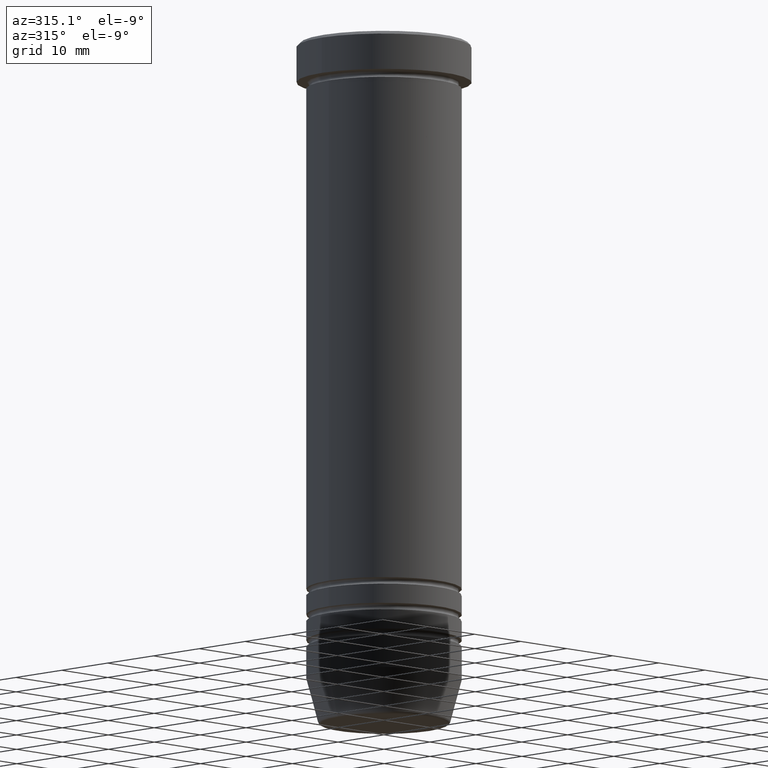
[diagram: clean part render]
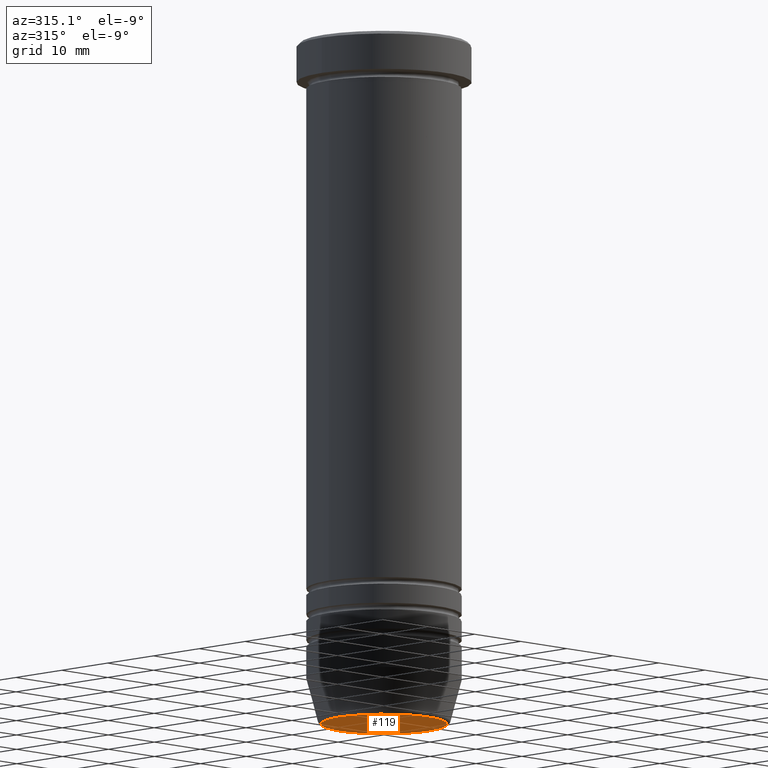
[diagram: same view with one face highlighted and labeled with its STEP entity id]
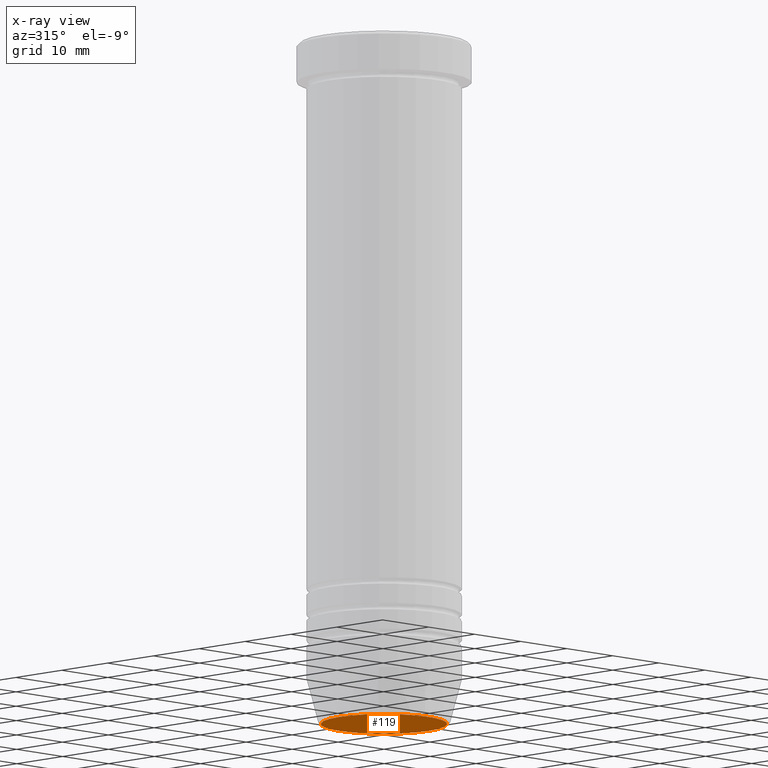
[diagram: x-ray of the same camera — body ghosted, the highlighted face saturated]
A machine part, auxiliary view. The second image highlights one B-rep face of the part: STEP entity #119.
The next image is the same camera in x-ray: the body ghosted, the highlighted face saturated — about 0% of this face is hidden behind the body in this view.
In plain terms, the highlighted planar face has unit normal (0, -0, 1).
Its self-contained STEP definition (entity closure, byte-faithful):
#4 = ORIENTED_EDGE ( 'NONE', *, *, #64, .T. ) ;
#64 = EDGE_CURVE ( 'NONE', #552, #385, #448, .T. ) ;
#119 = ADVANCED_FACE ( 'NONE', ( #348 ), #527, .F. ) ;
#246 = AXIS2_PLACEMENT_3D ( 'NONE', #396, #583, #748 ) ;
#259 = DIRECTION ( 'NONE',  ( 1.000000000000000000, 0.000000000000000000, 0.000000000000000000 ) ) ;
#348 = FACE_OUTER_BOUND ( 'NONE', #713, .T. ) ;
#385 = VERTEX_POINT ( 'NONE', #1012 ) ;
#396 = CARTESIAN_POINT ( 'NONE',  ( 0.000000000000000000, 0.000000000000000000, -106.0000000000000000 ) ) ;
#448 = CIRCLE ( 'NONE', #751, 9.740692158992654726 ) ;
#502 = DIRECTION ( 'NONE',  ( 0.000000000000000000, 0.000000000000000000, -1.000000000000000000 ) ) ;
#527 = PLANE ( 'NONE',  #753 ) ;
#552 = VERTEX_POINT ( 'NONE', #654 ) ;
#583 = DIRECTION ( 'NONE',  ( 0.000000000000000000, 0.000000000000000000, -1.000000000000000000 ) ) ;
#585 = EDGE_CURVE ( 'NONE', #385, #552, #1006, .T. ) ;
#593 = CARTESIAN_POINT ( 'NONE',  ( 0.000000000000000000, 0.000000000000000000, -106.0000000000000000 ) ) ;
#654 = CARTESIAN_POINT ( 'NONE',  ( 9.740692158992654726, 0.000000000000000000, -106.0000000000000000 ) ) ;
#677 = ORIENTED_EDGE ( 'NONE', *, *, #585, .T. ) ;
#704 = DIRECTION ( 'NONE',  ( 0.000000000000000000, -0.000000000000000000, 1.000000000000000000 ) ) ;
#713 = EDGE_LOOP ( 'NONE', ( #4, #677 ) ) ;
#748 = DIRECTION ( 'NONE',  ( 1.000000000000000000, 0.000000000000000000, 0.000000000000000000 ) ) ;
#751 = AXIS2_PLACEMENT_3D ( 'NONE', #593, #502, #1139 ) ;
#753 = AXIS2_PLACEMENT_3D ( 'NONE', #1147, #704, #259 ) ;
#1006 = CIRCLE ( 'NONE', #246, 9.740692158992654726 ) ;
#1012 = CARTESIAN_POINT ( 'NONE',  ( -9.740692158992654726, 1.222463696683474210E-15, -106.0000000000000000 ) ) ;
#1139 = DIRECTION ( 'NONE',  ( 1.000000000000000000, 0.000000000000000000, 0.000000000000000000 ) ) ;
#1147 = CARTESIAN_POINT ( 'NONE',  ( 0.000000000000000000, 5.694607616035192278E-15, -106.0000000000000000 ) ) ;